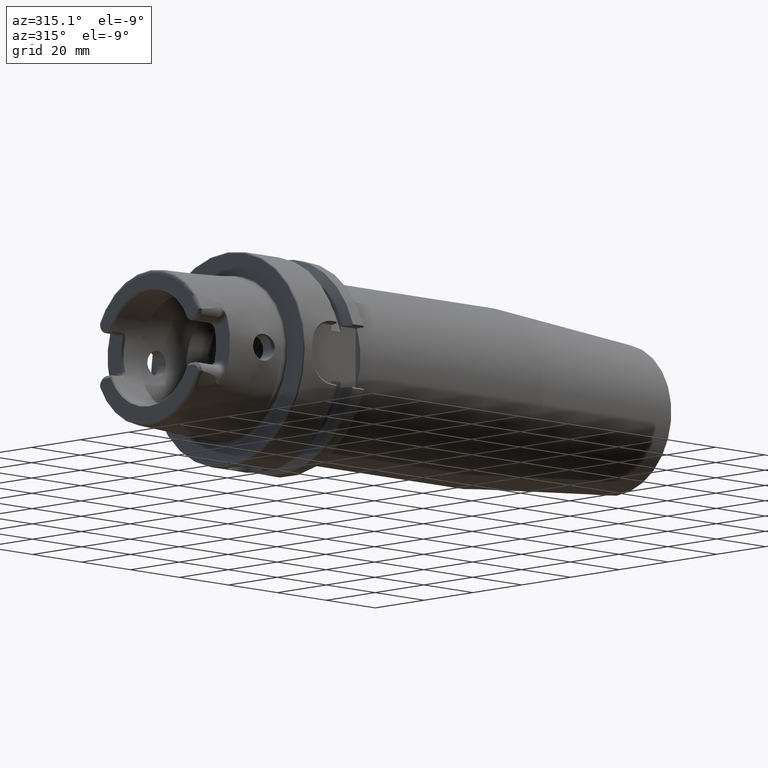
[diagram: clean part render]
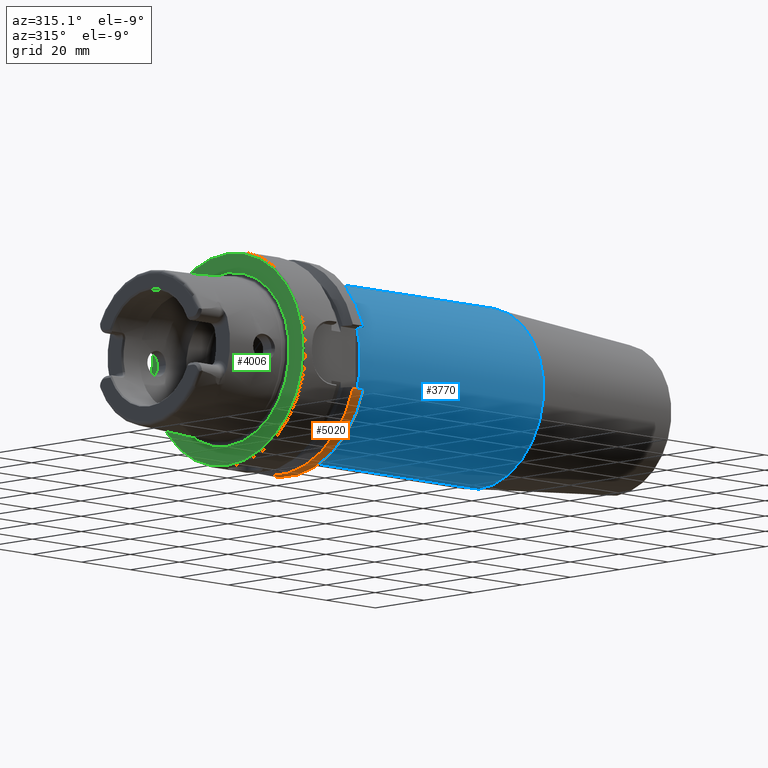
[diagram: same view with three faces highlighted in distinct colors, each labeled with its STEP entity id]
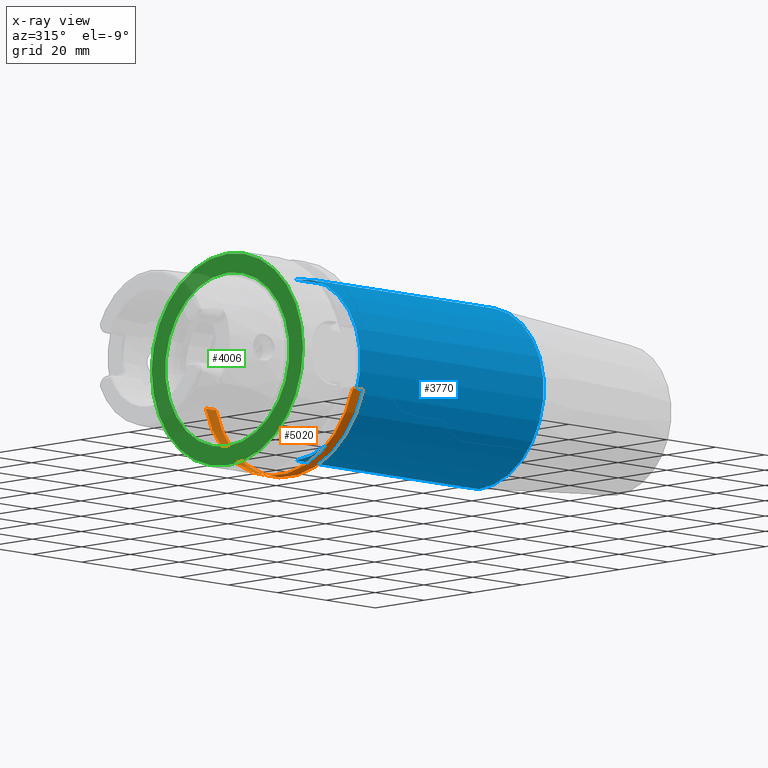
[diagram: x-ray of the same camera — body ghosted, the three highlighted faces saturated]
A machine part, auxiliary view with three faces highlighted in distinct colors.
The next image is the same camera in x-ray (body ghosted, the three faces saturated) — at least one of them is partly hidden behind the body in this view.
Their STEP definitions:

[orange] entity #5020 — the highlighted cylindrical surface (partial cylindrical patch) has radius 31.5 mm, axis along (1, 0, 0).
#714=CARTESIAN_POINT('',(2.55E1,3.030257052423E1,-8.602570524226E0));
#1735=DIRECTION('',(1.E0,0.E0,1.034143222886E-14));
#1736=VECTOR('',#1735,4.122500945915E0);
#1737=CARTESIAN_POINT('',(2.137749905409E1,3.030257052423E1,-8.602570524226E0));
#1738=LINE('',#1737,#1736);
#1739=DIRECTION('',(1.E0,0.E0,0.E0));
#1740=VECTOR('',#1739,4.122500945915E0);
#1741=CARTESIAN_POINT('',(2.137749905409E1,-3.007314630073E1,
-9.373146300730E0));
#1742=LINE('',#1741,#1740);
#1851=CARTESIAN_POINT('',(2.55E1,0.E0,0.E0));
#1852=DIRECTION('',(-1.E0,0.E0,0.E0));
#1853=DIRECTION('',(0.E0,9.619863658485E-1,-2.730974769596E-1));
#1854=AXIS2_PLACEMENT_3D('',#1851,#1852,#1853);
#1861=CARTESIAN_POINT('',(2.55E1,-3.007314630073E1,-9.373146300730E0));
#2240=CARTESIAN_POINT('',(2.137749905409E1,3.030257052423E1,-8.602570524226E0));
#2270=CARTESIAN_POINT('',(2.137749905409E1,-3.007314630073E1,
-9.373146300730E0));
#2272=CARTESIAN_POINT('',(2.137749905409E1,0.E0,0.E0));
#2273=DIRECTION('',(1.E0,0.E0,0.E0));
#2274=DIRECTION('',(0.E0,-9.547030571660E-1,-2.975602000232E-1));
#2275=AXIS2_PLACEMENT_3D('',#2272,#2273,#2274);
#2914=VERTEX_POINT('',#2270);
#2936=VERTEX_POINT('',#2240);
#2954=VERTEX_POINT('',#1861);
#2958=VERTEX_POINT('',#714);
#5006=CARTESIAN_POINT('',(0.E0,0.E0,0.E0));
#5007=DIRECTION('',(1.E0,0.E0,0.E0));
#5008=DIRECTION('',(0.E0,0.E0,1.E0));
#5009=AXIS2_PLACEMENT_3D('',#5006,#5007,#5008);
#5010=CYLINDRICAL_SURFACE('',#5009,3.15E1);
#5012=ORIENTED_EDGE('',*,*,#5011,.F.);
#5013=ORIENTED_EDGE('',*,*,#3923,.F.);
#5015=ORIENTED_EDGE('',*,*,#5014,.F.);
#5017=ORIENTED_EDGE('',*,*,#5016,.T.);
#5018=EDGE_LOOP('',(#5012,#5013,#5015,#5017));
#5019=FACE_OUTER_BOUND('',#5018,.F.);
#5020=ADVANCED_FACE('',(#5019),#5010,.T.);
#1855=CIRCLE('',#1854,3.15E1);
#2276=CIRCLE('',#2275,3.15E1);
#3923=EDGE_CURVE('',#2936,#2958,#1738,.T.);
#5011=EDGE_CURVE('',#2958,#2954,#1855,.T.);
#5014=EDGE_CURVE('',#2914,#2936,#2276,.T.);
#5016=EDGE_CURVE('',#2914,#2954,#1742,.T.);

[blue] entity #3770 — the highlighted cylindrical surface (partial cylindrical patch) has radius 26.5 mm, axis along (1, 0, 0).
#607=DIRECTION('',(-1.E0,0.E0,0.E0));
#608=VECTOR('',#607,7.482207868721E1);
#609=CARTESIAN_POINT('',(1.028220786872E2,0.E0,-2.65E1));
#610=LINE('',#609,#608);
#611=DIRECTION('',(-1.E0,0.E0,0.E0));
#612=VECTOR('',#611,7.482207868721E1);
#613=CARTESIAN_POINT('',(1.028220786872E2,0.E0,2.65E1));
#614=LINE('',#613,#612);
#615=CARTESIAN_POINT('',(1.028220786872E2,0.E0,0.E0));
#616=DIRECTION('',(-1.E0,0.E0,0.E0));
#617=DIRECTION('',(0.E0,0.E0,-1.E0));
#618=AXIS2_PLACEMENT_3D('',#615,#616,#617);
#2434=CARTESIAN_POINT('',(2.8E1,0.E0,0.E0));
#2435=DIRECTION('',(-1.E0,0.E0,0.E0));
#2436=DIRECTION('',(0.E0,0.E0,-1.E0));
#2437=AXIS2_PLACEMENT_3D('',#2434,#2435,#2436);
#3002=CARTESIAN_POINT('',(1.028220786872E2,0.E0,-2.65E1));
#3003=VERTEX_POINT('',#3002);
#3004=CARTESIAN_POINT('',(2.8E1,0.E0,-2.65E1));
#3005=VERTEX_POINT('',#3004);
#3024=CARTESIAN_POINT('',(1.028220786872E2,0.E0,2.65E1));
#3025=VERTEX_POINT('',#3024);
#3026=CARTESIAN_POINT('',(2.8E1,0.E0,2.65E1));
#3027=VERTEX_POINT('',#3026);
#3756=CARTESIAN_POINT('',(1.93E1,0.E0,0.E0));
#3757=DIRECTION('',(1.E0,0.E0,0.E0));
#3758=DIRECTION('',(0.E0,0.E0,1.E0));
#3759=AXIS2_PLACEMENT_3D('',#3756,#3757,#3758);
#3760=CYLINDRICAL_SURFACE('',#3759,2.65E1);
#3762=ORIENTED_EDGE('',*,*,#3761,.T.);
#3764=ORIENTED_EDGE('',*,*,#3763,.T.);
#3766=ORIENTED_EDGE('',*,*,#3765,.F.);
#3767=ORIENTED_EDGE('',*,*,#3749,.F.);
#3768=EDGE_LOOP('',(#3762,#3764,#3766,#3767));
#3769=FACE_OUTER_BOUND('',#3768,.F.);
#3770=ADVANCED_FACE('',(#3769),#3760,.T.);
#619=CIRCLE('',#618,2.65E1);
#2438=CIRCLE('',#2437,2.65E1);
#3749=EDGE_CURVE('',#3003,#3025,#619,.T.);
#3761=EDGE_CURVE('',#3003,#3005,#610,.T.);
#3763=EDGE_CURVE('',#3005,#3027,#2438,.T.);
#3765=EDGE_CURVE('',#3025,#3027,#614,.T.);

[green] entity #4006 — the highlighted planar face has unit normal (1, 0, 0).
#880=CARTESIAN_POINT('',(0.E0,0.E0,0.E0));
#881=DIRECTION('',(1.E0,0.E0,0.E0));
#882=DIRECTION('',(0.E0,0.E0,-1.E0));
#883=AXIS2_PLACEMENT_3D('',#880,#881,#882);
#885=CARTESIAN_POINT('',(0.E0,0.E0,0.E0));
#886=DIRECTION('',(1.E0,0.E0,0.E0));
#887=DIRECTION('',(0.E0,0.E0,1.E0));
#888=AXIS2_PLACEMENT_3D('',#885,#886,#887);
#890=CARTESIAN_POINT('',(0.E0,0.E0,0.E0));
#891=DIRECTION('',(-1.E0,0.E0,0.E0));
#892=DIRECTION('',(0.E0,0.E0,1.E0));
#893=AXIS2_PLACEMENT_3D('',#890,#891,#892);
#895=CARTESIAN_POINT('',(0.E0,0.E0,0.E0));
#896=DIRECTION('',(-1.E0,0.E0,0.E0));
#897=DIRECTION('',(0.E0,0.E0,-1.E0));
#898=AXIS2_PLACEMENT_3D('',#895,#896,#897);
#2627=CARTESIAN_POINT('',(0.E0,0.E0,-2.54204E1));
#2628=CARTESIAN_POINT('',(0.E0,0.E0,2.54204E1));
#2629=VERTEX_POINT('',#2627);
#2630=VERTEX_POINT('',#2628);
#2946=CARTESIAN_POINT('',(0.E0,0.E0,3.1E1));
#2947=CARTESIAN_POINT('',(0.E0,1.138921523207E-14,-3.1E1));
#2948=VERTEX_POINT('',#2946);
#2949=VERTEX_POINT('',#2947);
#3990=CARTESIAN_POINT('',(0.E0,0.E0,0.E0));
#3991=DIRECTION('',(1.E0,0.E0,0.E0));
#3992=DIRECTION('',(0.E0,0.E0,1.E0));
#3993=AXIS2_PLACEMENT_3D('',#3990,#3991,#3992);
#3994=PLANE('',#3993);
#3995=ORIENTED_EDGE('',*,*,#3980,.F.);
#3997=ORIENTED_EDGE('',*,*,#3996,.F.);
#3998=EDGE_LOOP('',(#3995,#3997));
#3999=FACE_OUTER_BOUND('',#3998,.F.);
#4001=ORIENTED_EDGE('',*,*,#4000,.F.);
#4003=ORIENTED_EDGE('',*,*,#4002,.F.);
#4004=EDGE_LOOP('',(#4001,#4003));
#4005=FACE_BOUND('',#4004,.F.);
#4006=ADVANCED_FACE('',(#3999,#4005),#3994,.F.);
#884=CIRCLE('',#883,2.54204E1);
#889=CIRCLE('',#888,2.54204E1);
#894=CIRCLE('',#893,3.1E1);
#899=CIRCLE('',#898,3.1E1);
#3980=EDGE_CURVE('',#2948,#2949,#894,.T.);
#3996=EDGE_CURVE('',#2949,#2948,#899,.T.);
#4000=EDGE_CURVE('',#2629,#2630,#884,.T.);
#4002=EDGE_CURVE('',#2630,#2629,#889,.T.);